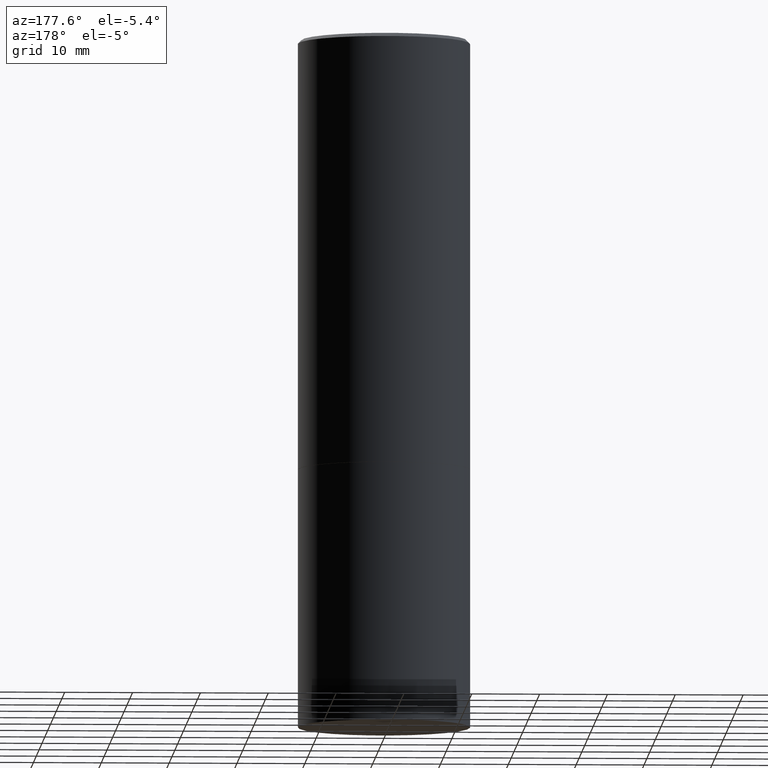
[diagram: clean part render]
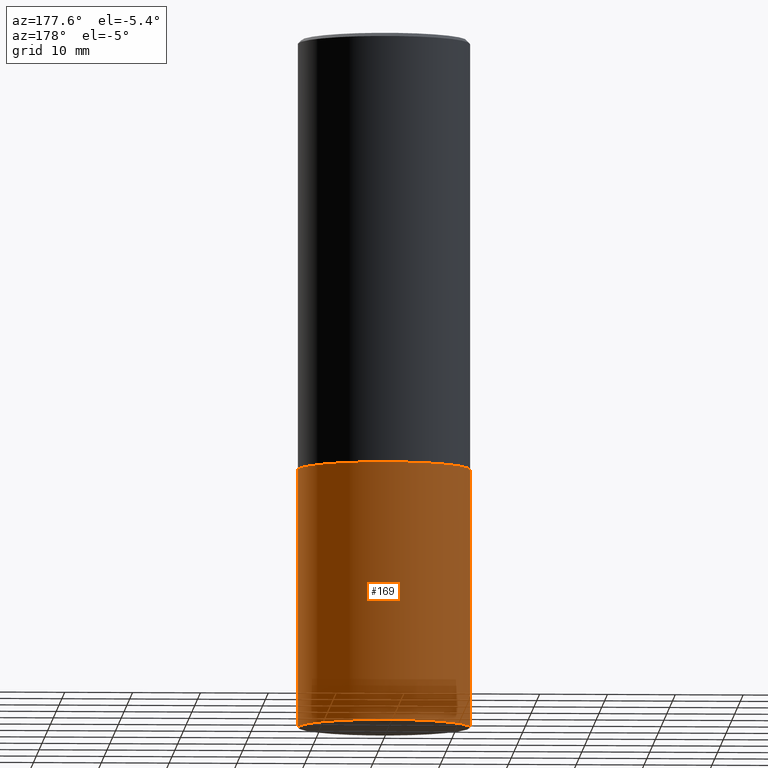
[diagram: same view with one face highlighted and labeled with its STEP entity id]
A machine part, auxiliary view. The second image highlights one B-rep face of the part: STEP entity #169.
In plain terms, the highlighted cylindrical surface (partial cylindrical patch) has radius 12.7 mm, axis along (-0, 0, 1).
Its self-contained STEP definition (entity closure, byte-faithful):
#7 = DIRECTION ( 'NONE',  ( -2.445468806185136597E-29, 3.491481338843145583E-15, 1.000000000000000000 ) ) ;
#12 = AXIS2_PLACEMENT_3D ( 'NONE', #85, #350, #293 ) ;
#20 = DIRECTION ( 'NONE',  ( 1.000000000000000000, -6.982962677686266711E-15, 0.000000000000000000 ) ) ;
#24 = CARTESIAN_POINT ( 'NONE',  ( 0.4999999999999993894, -1.739617435425834338E-14, -4.000000000000000000 ) ) ;
#47 = CARTESIAN_POINT ( 'NONE',  ( -0.4999999999999993894, -1.047444401652945213E-14, -4.000000000000000000 ) ) ;
#56 = DIRECTION ( 'NONE',  ( -2.445468806185136877E-29, 3.491481338843145188E-15, 1.000000000000000000 ) ) ;
#59 = LINE ( 'NONE', #145, #344 ) ;
#72 = ORIENTED_EDGE ( 'NONE', *, *, #154, .T. ) ;
#80 = DIRECTION ( 'NONE',  ( -2.445468806185136597E-29, 3.491481338843145583E-15, 1.000000000000000000 ) ) ;
#85 = CARTESIAN_POINT ( 'NONE',  ( 0.000000000000000000, 0.000000000000000000, 0.000000000000000000 ) ) ;
#88 = CIRCLE ( 'NONE', #231, 0.5000000000000000000 ) ;
#108 = CARTESIAN_POINT ( 'NONE',  ( 6.113672015462842613E-29, -8.728703347107864943E-15, -2.500000000000000000 ) ) ;
#111 = CARTESIAN_POINT ( 'NONE',  ( 0.5000000000000000000, -1.222018468595099830E-14, -2.500000000000000000 ) ) ;
#139 = CARTESIAN_POINT ( 'NONE',  ( 9.781875224740546387E-29, -1.396592535537258233E-14, -4.000000000000000000 ) ) ;
#145 = CARTESIAN_POINT ( 'NONE',  ( 0.5000000000000000000, -3.491481338843133355E-15, 2.438088387897967896E-29 ) ) ;
#154 = EDGE_CURVE ( 'NONE', #335, #250, #88, .T. ) ;
#162 = VERTEX_POINT ( 'NONE', #111 ) ;
#169 = ADVANCED_FACE ( 'NONE', ( #261 ), #351, .T. ) ;
#179 = VERTEX_POINT ( 'NONE', #289 ) ;
#204 = VECTOR ( 'NONE', #56, 39.37007874015748143 ) ;
#228 = DIRECTION ( 'NONE',  ( 1.000000000000000000, -6.982962677686269077E-15, 0.000000000000000000 ) ) ;
#230 = EDGE_CURVE ( 'NONE', #250, #179, #376, .T. ) ;
#231 = AXIS2_PLACEMENT_3D ( 'NONE', #139, #80, #20 ) ;
#250 = VERTEX_POINT ( 'NONE', #47 ) ;
#261 = FACE_OUTER_BOUND ( 'NONE', #330, .T. ) ;
#270 = EDGE_CURVE ( 'NONE', #162, #179, #315, .T. ) ;
#279 = ORIENTED_EDGE ( 'NONE', *, *, #270, .F. ) ;
#289 = CARTESIAN_POINT ( 'NONE',  ( -0.5000000000000000000, -7.794600672439723496E-15, -2.500000000000000000 ) ) ;
#290 = AXIS2_PLACEMENT_3D ( 'NONE', #108, #7, #228 ) ;
#293 = DIRECTION ( 'NONE',  ( 1.000000000000000000, -6.982962677686266711E-15, 4.876176775795935793E-29 ) ) ;
#303 = DIRECTION ( 'NONE',  ( -2.445468806185136877E-29, 3.491481338843145188E-15, 1.000000000000000000 ) ) ;
#314 = EDGE_CURVE ( 'NONE', #335, #162, #59, .T. ) ;
#315 = CIRCLE ( 'NONE', #290, 0.5000000000000000000 ) ;
#325 = CARTESIAN_POINT ( 'NONE',  ( -0.5000000000000000000, 3.552713678800500929E-15, -2.459467545127452891E-29 ) ) ;
#330 = EDGE_LOOP ( 'NONE', ( #72, #346, #279, #362 ) ) ;
#335 = VERTEX_POINT ( 'NONE', #24 ) ;
#344 = VECTOR ( 'NONE', #303, 39.37007874015748143 ) ;
#346 = ORIENTED_EDGE ( 'NONE', *, *, #230, .T. ) ;
#350 = DIRECTION ( 'NONE',  ( -2.445468806185136597E-29, 3.491481338843145583E-15, 1.000000000000000000 ) ) ;
#351 = CYLINDRICAL_SURFACE ( 'NONE', #12, 0.5000000000000000000 ) ;
#362 = ORIENTED_EDGE ( 'NONE', *, *, #314, .F. ) ;
#376 = LINE ( 'NONE', #325, #204 ) ;